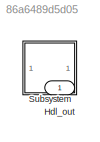
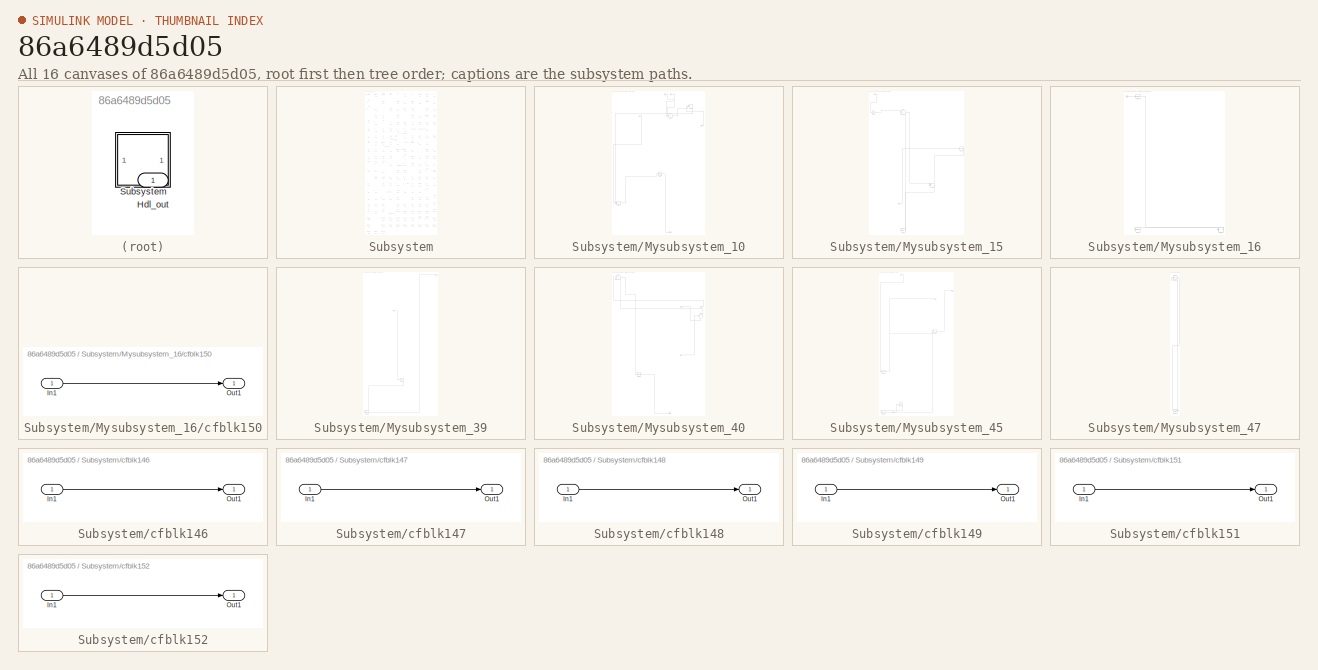
[diagram: thumbnail index - all 16 canvases of the model, root first then tree order]
MODEL slx_86a6489d5d05
KIND model
CONFIG AbsTol = auto
CONFIG EnableMultiTasking = off
CONFIG FixedStep = auto
CONFIG MaxStep = auto
CONFIG MinStep = auto
CONFIG RelTol = 1e-3
CONFIG SampleTimeConstraint = Unconstrained
CONFIG SolverName = VariableStepAuto
CONFIG StartTime = 0.0
CONFIG StopTime = 10.0
BLOCK [Outport] Hdl_out
  OutDataTypeStr = uint8
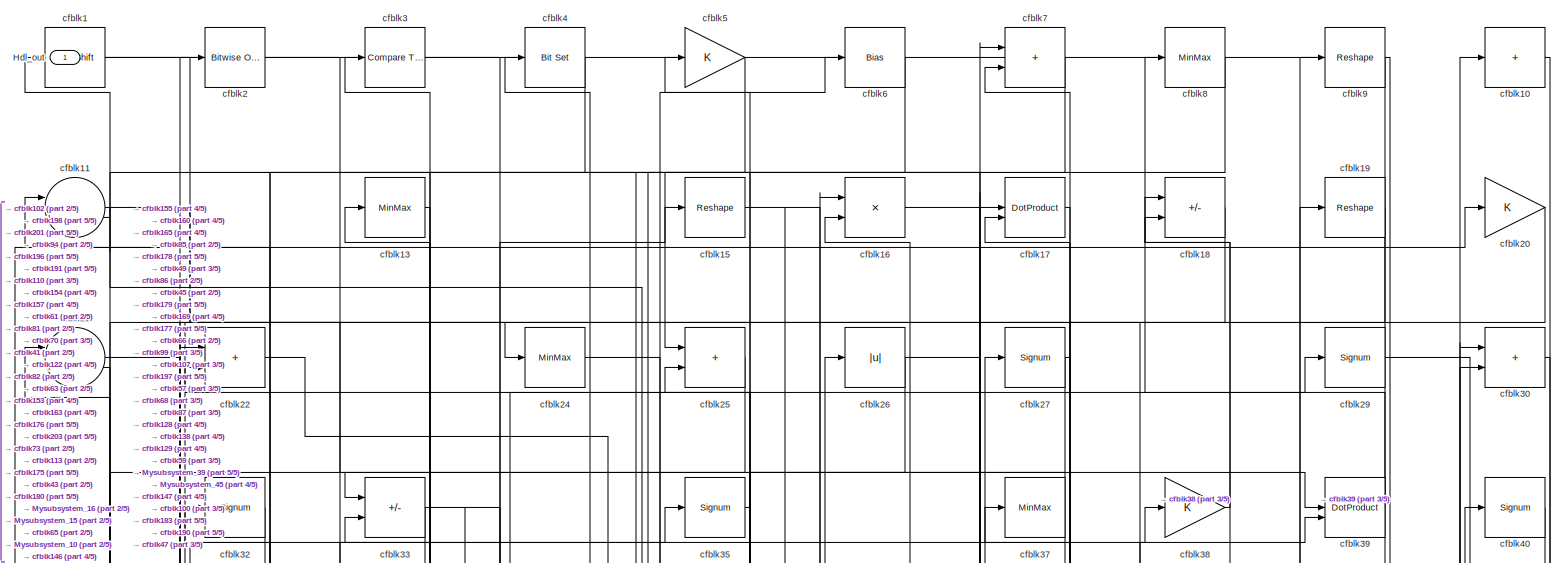
[diagram: Subsystem - part 1/5, full width, top band]
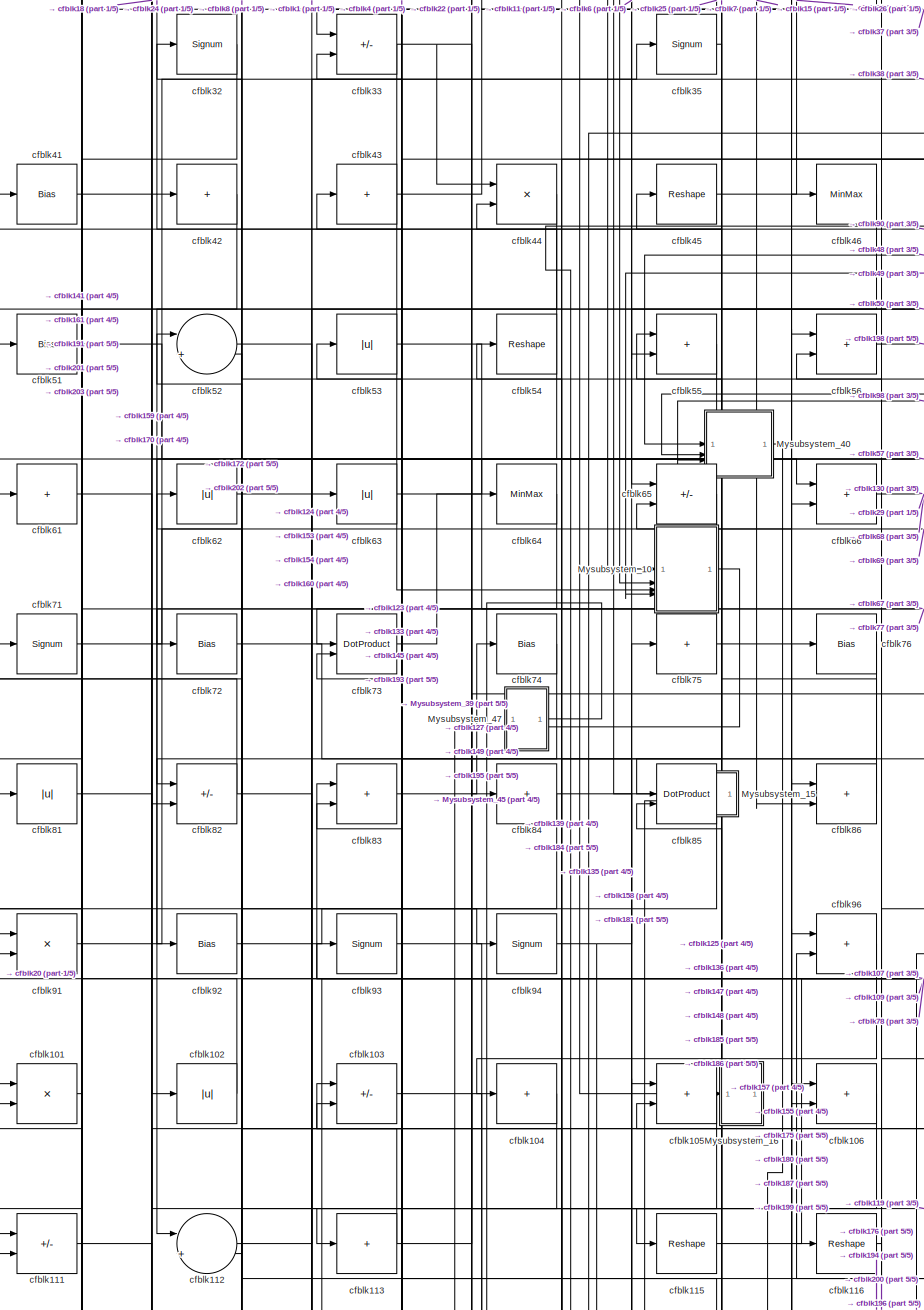
[diagram: Subsystem - part 2/5, middle left region]
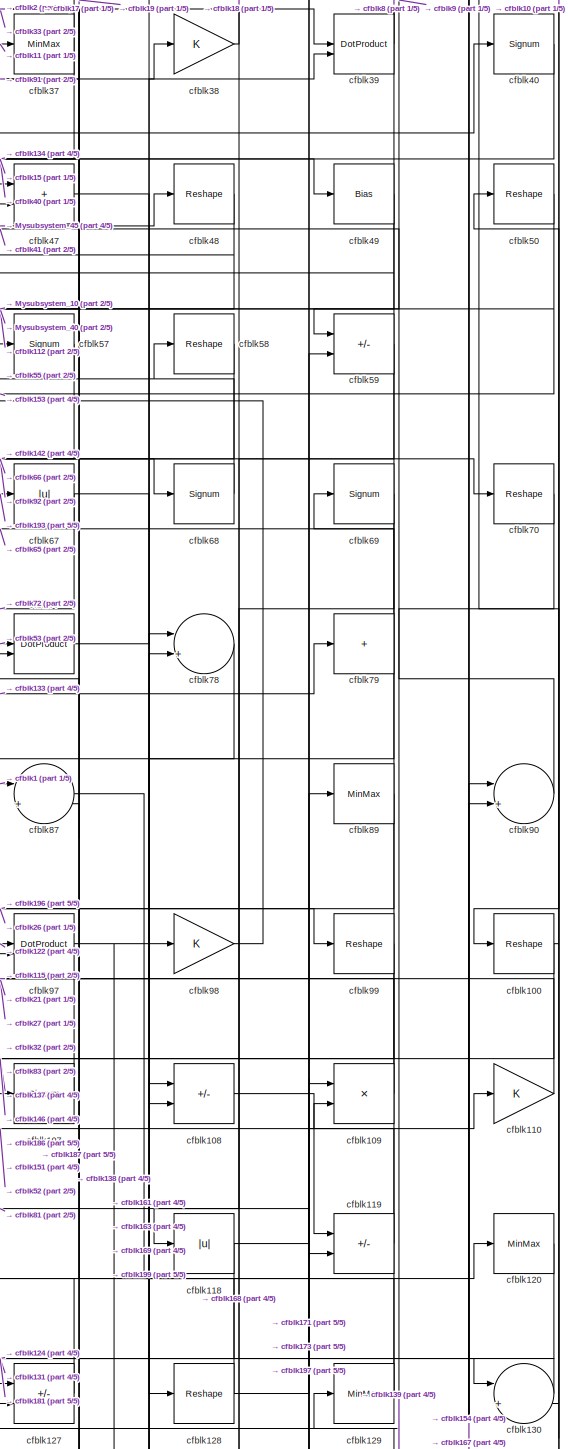
[diagram: Subsystem - part 3/5, middle right region]
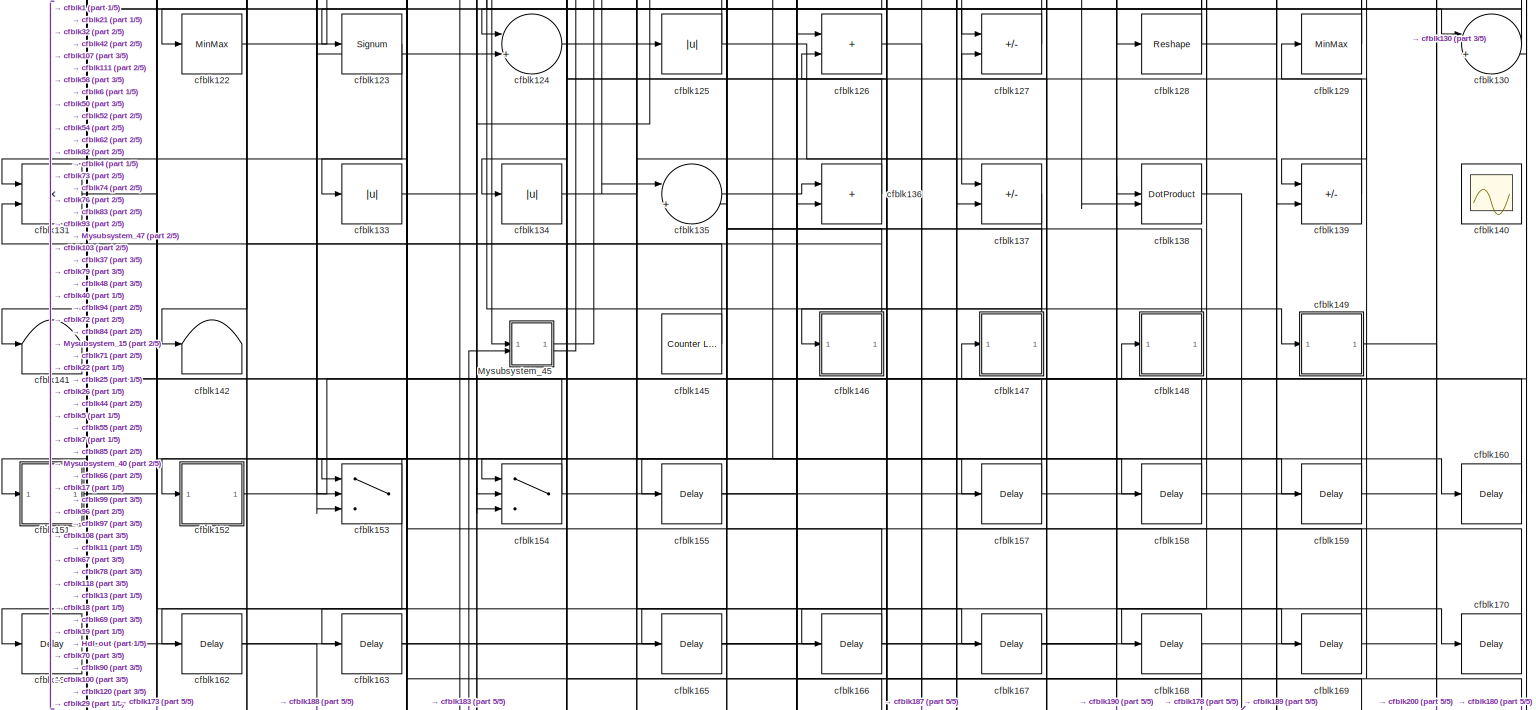
[diagram: Subsystem - part 4/5, full width, bottom band]
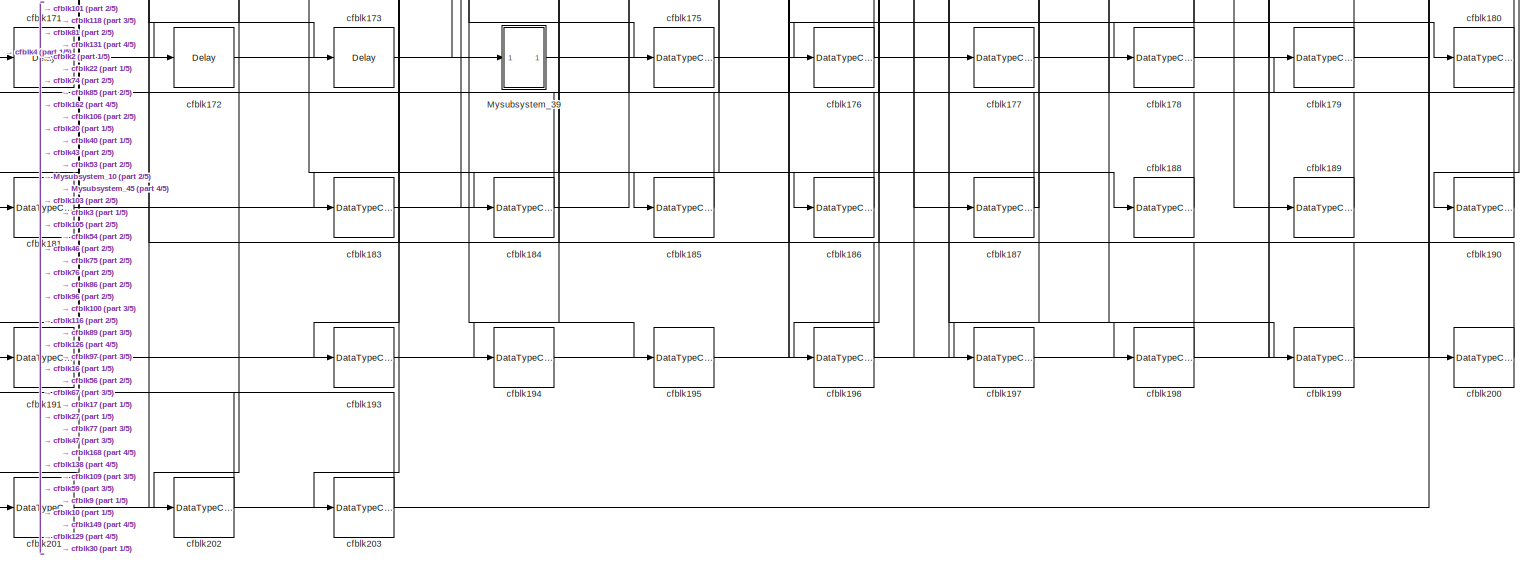
[diagram: Subsystem - part 5/5, full width, bottom band]
BLOCK [SubSystem] Subsystem
BLOCK [Outport] Subsystem/Hdl_out
  OutDataTypeStr = uint8
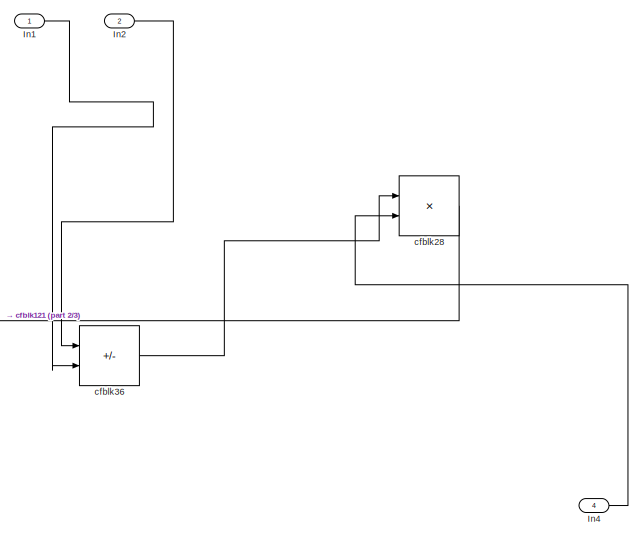
[diagram: Subsystem/Mysubsystem_10 - part 1/3, top right region]
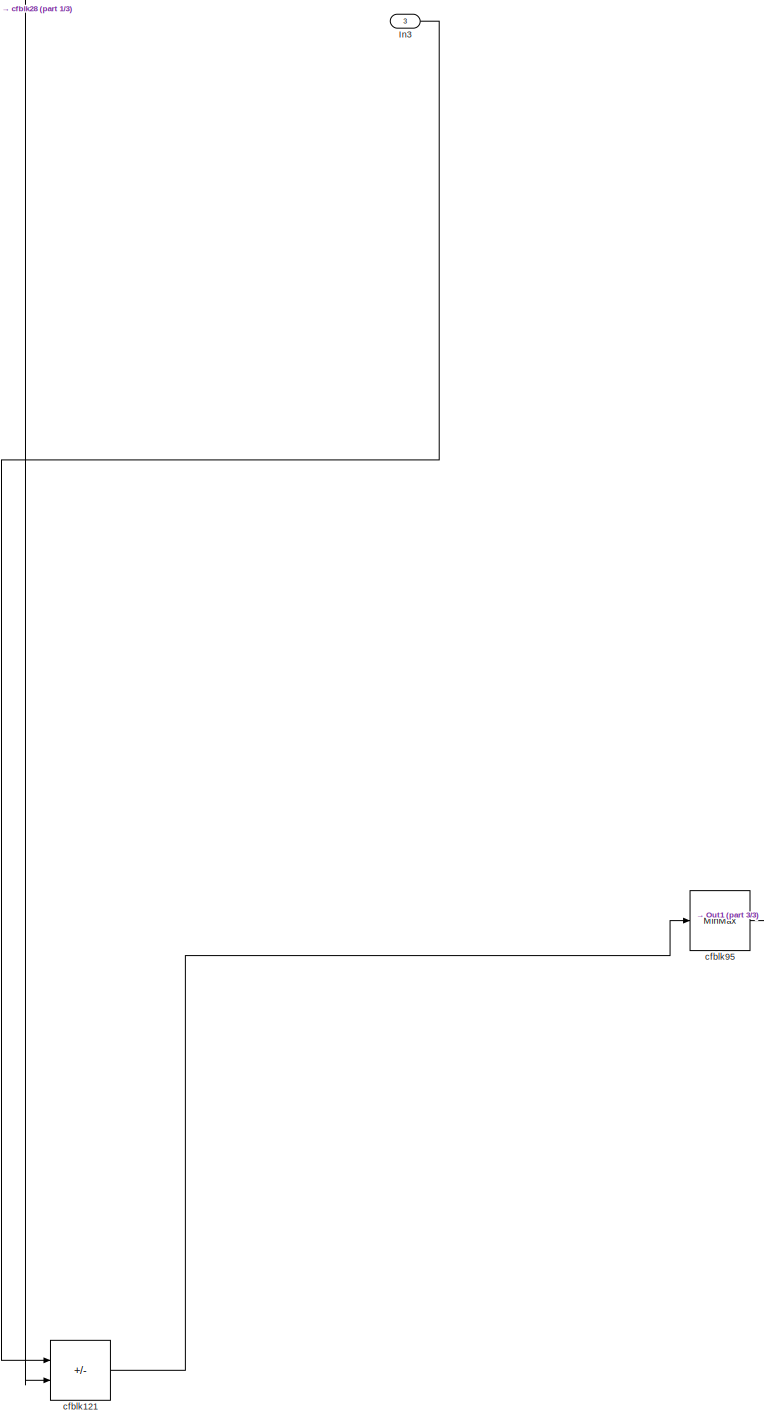
[diagram: Subsystem/Mysubsystem_10 - part 2/3, middle left region]
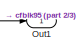
[diagram: Subsystem/Mysubsystem_10 - part 3/3, bottom center region]
BLOCK [SubSystem] Subsystem/Mysubsystem_10
  RTWFcnName = Mysubsystem_10
  RTWFcnNameOpts = User specified
  RTWFileNameOpts = Use function name
  RTWSystemCode = Reusable function
  TreatAsAtomicUnit = on
BLOCK [Inport] Subsystem/Mysubsystem_10/In1
BLOCK [Inport] Subsystem/Mysubsystem_10/In2
  Port = 2
BLOCK [Inport] Subsystem/Mysubsystem_10/In3
  Port = 3
BLOCK [Inport] Subsystem/Mysubsystem_10/In4
  Port = 4
BLOCK [Outport] Subsystem/Mysubsystem_10/Out1
BLOCK [Sum] Subsystem/Mysubsystem_10/cfblk121
  IconShape = rectangular
  Inputs = +-
BLOCK [Product] Subsystem/Mysubsystem_10/cfblk28
  Inputs = */
  RndMeth = Zero
  SaturateOnIntegerOverflow = on
BLOCK [Sum] Subsystem/Mysubsystem_10/cfblk36
  IconShape = rectangular
  Inputs = +-
BLOCK [MinMax] Subsystem/Mysubsystem_10/cfblk95
BLOCK [SubSystem] Subsystem/Mysubsystem_15
  RTWFcnName = Mysubsystem_15
  RTWFcnNameOpts = User specified
  RTWFileNameOpts = Use function name
  RTWSystemCode = Reusable function
  TreatAsAtomicUnit = on
BLOCK [Inport] Subsystem/Mysubsystem_15/In1
BLOCK [Inport] Subsystem/Mysubsystem_15/In2
  Port = 2
BLOCK [Sum] Subsystem/Mysubsystem_15/cfblk117
  IconShape = rectangular
  Inputs = +-
BLOCK [Delay] Subsystem/Mysubsystem_15/cfblk164
  InputPortMap = u0
  SampleTime = 1
BLOCK [Gain] Subsystem/Mysubsystem_15/cfblk31
BLOCK [Sum] Subsystem/Mysubsystem_15/cfblk34
  IconShape = rectangular
  Inputs = +-
BLOCK [Signum] Subsystem/Mysubsystem_15/cfblk80
BLOCK [SubSystem] Subsystem/Mysubsystem_16
  RTWFcnName = Mysubsystem_16
  RTWFcnNameOpts = User specified
  RTWFileNameOpts = Use function name
  RTWSystemCode = Reusable function
  TreatAsAtomicUnit = on
BLOCK [Inport] Subsystem/Mysubsystem_16/In1
BLOCK [ToWorkspace] Subsystem/Mysubsystem_16/cfblk143
  MaxDataPoints = inf
  SampleTime = -1
  SaveFormat = Timeseries
  VariableName = simout
BLOCK [SubSystem] Subsystem/Mysubsystem_16/cfblk150
  LibrarySourceBlock = hdlsllib/Ports &\nSubsystems/Subsystem
BLOCK [Inport] Subsystem/Mysubsystem_16/cfblk150/In1
BLOCK [Outport] Subsystem/Mysubsystem_16/cfblk150/Out1
BLOCK [MinMax] Subsystem/Mysubsystem_16/cfblk23
BLOCK [SubSystem] Subsystem/Mysubsystem_39
  RTWFcnName = Mysubsystem_39
  RTWFcnNameOpts = User specified
  RTWFileNameOpts = Use function name
  RTWSystemCode = Reusable function
  TreatAsAtomicUnit = on
BLOCK [Inport] Subsystem/Mysubsystem_39/In1
BLOCK [Outport] Subsystem/Mysubsystem_39/Out1
BLOCK [Delay] Subsystem/Mysubsystem_39/cfblk156
  InputPortMap = u0
  SampleTime = 1
BLOCK [DataTypeConversion] Subsystem/Mysubsystem_39/cfblk192
  OutDataTypeStr = uint8
  RndMeth = Floor
  SaturateOnIntegerOverflow = off
BLOCK [SubSystem] Subsystem/Mysubsystem_40
  RTWFcnName = Mysubsystem_40
  RTWFcnNameOpts = User specified
  RTWFileNameOpts = Use function name
  RTWSystemCode = Reusable function
  TreatAsAtomicUnit = on
BLOCK [Inport] Subsystem/Mysubsystem_40/In1
BLOCK [Inport] Subsystem/Mysubsystem_40/In2
  Port = 2
BLOCK [Inport] Subsystem/Mysubsystem_40/In3
  Port = 3
BLOCK [Outport] Subsystem/Mysubsystem_40/Out1
BLOCK [Reshape] Subsystem/Mysubsystem_40/cfblk114
BLOCK [Product] Subsystem/Mysubsystem_40/cfblk12
  Inputs = */
  RndMeth = Zero
  SaturateOnIntegerOverflow = on
BLOCK [Sum] Subsystem/Mysubsystem_40/cfblk60
  Inputs = |++
BLOCK [SubSystem] Subsystem/Mysubsystem_45
  RTWFcnName = Mysubsystem_45
  RTWFcnNameOpts = User specified
  RTWFileNameOpts = Use function name
  RTWSystemCode = Reusable function
  TreatAsAtomicUnit = on
BLOCK [Inport] Subsystem/Mysubsystem_45/In1
BLOCK [Inport] Subsystem/Mysubsystem_45/In2
  Port = 2
BLOCK [Outport] Subsystem/Mysubsystem_45/Out1
BLOCK [Outport] Subsystem/Mysubsystem_45/Out2
  Port = 2
BLOCK [Reshape] Subsystem/Mysubsystem_45/cfblk132
BLOCK [Delay] Subsystem/Mysubsystem_45/cfblk174
  InputPortMap = u0
  SampleTime = 1
BLOCK [DataTypeConversion] Subsystem/Mysubsystem_45/cfblk182
  OutDataTypeStr = uint8
  RndMeth = Floor
  SaturateOnIntegerOverflow = off
BLOCK [Sum] Subsystem/Mysubsystem_45/cfblk88
  IconShape = rectangular
BLOCK [SubSystem] Subsystem/Mysubsystem_47
  RTWFcnName = Mysubsystem_47
  RTWFcnNameOpts = User specified
  RTWFileNameOpts = Use function name
  RTWSystemCode = Reusable function
  TreatAsAtomicUnit = on
BLOCK [Outport] Subsystem/Mysubsystem_47/Out1
BLOCK [Reshape] Subsystem/Mysubsystem_47/cfblk14
BLOCK [Ground] Subsystem/Mysubsystem_47/cfblk144
BLOCK [ArithShift] Subsystem/cfblk1
  BitShiftNumber = 8
  InputPortMap = u0
BLOCK [Sum] Subsystem/cfblk10
  IconShape = rectangular
  Inputs = +
  OutDataTypeStr = uint8
BLOCK [Reshape] Subsystem/cfblk100
BLOCK [Product] Subsystem/cfblk101
  Inputs = */
  OutDataTypeStr = uint8
  RndMeth = Zero
  SaturateOnIntegerOverflow = on
BLOCK [Abs] Subsystem/cfblk102
  OutDataTypeStr = uint8
  SaturateOnIntegerOverflow = off
BLOCK [Sum] Subsystem/cfblk103
  IconShape = rectangular
  Inputs = +-
  OutDataTypeStr = uint8
BLOCK [Sum] Subsystem/cfblk104
  IconShape = rectangular
  Inputs = +
  OutDataTypeStr = uint8
BLOCK [Sum] Subsystem/cfblk105
  IconShape = rectangular
  OutDataTypeStr = uint8
BLOCK [Sum] Subsystem/cfblk106
  IconShape = rectangular
  OutDataTypeStr = uint8
BLOCK [Signum] Subsystem/cfblk107
BLOCK [Sum] Subsystem/cfblk108
  IconShape = rectangular
  Inputs = +-
  OutDataTypeStr = uint8
BLOCK [Product] Subsystem/cfblk109
  Inputs = */
  OutDataTypeStr = uint8
  RndMeth = Zero
  SaturateOnIntegerOverflow = on
BLOCK [Sum] Subsystem/cfblk11
  Inputs = |++
  OutDataTypeStr = uint8
BLOCK [Gain] Subsystem/cfblk110
  OutDataTypeStr = uint8
BLOCK [Sum] Subsystem/cfblk111
  IconShape = rectangular
  Inputs = +-
  OutDataTypeStr = uint8
BLOCK [Sum] Subsystem/cfblk112
  Inputs = |++
  OutDataTypeStr = uint8
BLOCK [Sum] Subsystem/cfblk113
  IconShape = rectangular
  Inputs = +
  OutDataTypeStr = uint8
BLOCK [Reshape] Subsystem/cfblk115
BLOCK [Reshape] Subsystem/cfblk116
BLOCK [Abs] Subsystem/cfblk118
  OutDataTypeStr = uint8
  SaturateOnIntegerOverflow = off
BLOCK [Sum] Subsystem/cfblk119
  IconShape = rectangular
  Inputs = +-
  OutDataTypeStr = uint8
BLOCK [MinMax] Subsystem/cfblk120
  OutDataTypeStr = uint8
BLOCK [MinMax] Subsystem/cfblk122
  OutDataTypeStr = uint8
BLOCK [Signum] Subsystem/cfblk123
BLOCK [Sum] Subsystem/cfblk124
  Inputs = |++
  OutDataTypeStr = uint8
BLOCK [Abs] Subsystem/cfblk125
  OutDataTypeStr = uint8
  SaturateOnIntegerOverflow = off
BLOCK [Sum] Subsystem/cfblk126
  IconShape = rectangular
  OutDataTypeStr = uint8
BLOCK [Sum] Subsystem/cfblk127
  IconShape = rectangular
  Inputs = +-
  OutDataTypeStr = uint8
BLOCK [Reshape] Subsystem/cfblk128
BLOCK [MinMax] Subsystem/cfblk129
  OutDataTypeStr = uint8
BLOCK [MinMax] Subsystem/cfblk13
  OutDataTypeStr = uint8
BLOCK [Sum] Subsystem/cfblk130
  Inputs = |++
  OutDataTypeStr = uint8
BLOCK [Product] Subsystem/cfblk131
  Inputs = */
  OutDataTypeStr = uint8
  RndMeth = Zero
  SaturateOnIntegerOverflow = on
BLOCK [Abs] Subsystem/cfblk133
  OutDataTypeStr = uint8
  SaturateOnIntegerOverflow = off
BLOCK [Abs] Subsystem/cfblk134
  OutDataTypeStr = uint8
  SaturateOnIntegerOverflow = off
BLOCK [Sum] Subsystem/cfblk135
  Inputs = |++
  OutDataTypeStr = uint8
BLOCK [Sum] Subsystem/cfblk136
  IconShape = rectangular
  OutDataTypeStr = uint8
BLOCK [Sum] Subsystem/cfblk137
  IconShape = rectangular
  Inputs = +-
  OutDataTypeStr = uint8
BLOCK [DotProduct] Subsystem/cfblk138
  OutDataTypeStr = uint8
BLOCK [Sum] Subsystem/cfblk139
  IconShape = rectangular
  Inputs = +-
  OutDataTypeStr = uint8
BLOCK [Scope] Subsystem/cfblk140
  Floating = on
  NumInputPorts = 1
  ScopeSpecificationString = Simulink.scopes.TimeScopeBlockCfg('CurrentConfiguration', extmgr.ConfigurationSet(extmgr.Configuration('Core','General UI',true,'FigureColor',[0.156862745098039 0.156862745098039 0.156862745098039]),extmgr.Configuration('Core','Source UI',true),extmgr.Configuration('Sources','WiredSimulink',true,'DataLoggingSaveFormat','StructureWithTime','DataLoggingLimitDataPoints',true,'DataLoggingDecimation','...<+2674ch>
BLOCK [Terminator] Subsystem/cfblk141
BLOCK [Terminator] Subsystem/cfblk142
BLOCK [Reference] Subsystem/cfblk145  REF=hdlsllib/Sources/Counter
Limited
  SourceBlock = hdlsllib/Sources/Counter\nLimited
  SourceType = Counter Limited
BLOCK [SubSystem] Subsystem/cfblk146
  LibrarySourceBlock = hdlsllib/Ports &\nSubsystems/Subsystem
BLOCK [Inport] Subsystem/cfblk146/In1
BLOCK [Outport] Subsystem/cfblk146/Out1
BLOCK [SubSystem] Subsystem/cfblk147
  LibrarySourceBlock = hdlsllib/Ports &\nSubsystems/Subsystem
BLOCK [Inport] Subsystem/cfblk147/In1
BLOCK [Outport] Subsystem/cfblk147/Out1
BLOCK [SubSystem] Subsystem/cfblk148
  LibrarySourceBlock = hdlsllib/Ports &\nSubsystems/Subsystem
BLOCK [Inport] Subsystem/cfblk148/In1
BLOCK [Outport] Subsystem/cfblk148/Out1
BLOCK [SubSystem] Subsystem/cfblk149
  LibrarySourceBlock = hdlsllib/Ports &\nSubsystems/Subsystem
BLOCK [Inport] Subsystem/cfblk149/In1
BLOCK [Outport] Subsystem/cfblk149/Out1
BLOCK [Reshape] Subsystem/cfblk15
BLOCK [SubSystem] Subsystem/cfblk151
  LibrarySourceBlock = hdlsllib/Ports &\nSubsystems/Subsystem
BLOCK [Inport] Subsystem/cfblk151/In1
BLOCK [Outport] Subsystem/cfblk151/Out1
BLOCK [SubSystem] Subsystem/cfblk152
  LibrarySourceBlock = hdlsllib/Ports &\nSubsystems/Subsystem
BLOCK [Inport] Subsystem/cfblk152/In1
BLOCK [Outport] Subsystem/cfblk152/Out1
BLOCK [Switch] Subsystem/cfblk153
  InputSameDT = off
  OutDataTypeStr = uint8
  SaturateOnIntegerOverflow = off
BLOCK [Switch] Subsystem/cfblk154
  InputSameDT = off
  OutDataTypeStr = uint8
  SaturateOnIntegerOverflow = off
BLOCK [Delay] Subsystem/cfblk155
  InputPortMap = u0
  SampleTime = 1
BLOCK [Delay] Subsystem/cfblk157
  InputPortMap = u0
  SampleTime = 1
BLOCK [Delay] Subsystem/cfblk158
  InputPortMap = u0
  SampleTime = 1
BLOCK [Delay] Subsystem/cfblk159
  InputPortMap = u0
  SampleTime = 1
BLOCK [Product] Subsystem/cfblk16
  Inputs = */
  OutDataTypeStr = uint8
  RndMeth = Zero
  SaturateOnIntegerOverflow = on
BLOCK [Delay] Subsystem/cfblk160
  InputPortMap = u0
  SampleTime = 1
BLOCK [Delay] Subsystem/cfblk161
  InputPortMap = u0
  SampleTime = 1
BLOCK [Delay] Subsystem/cfblk162
  InputPortMap = u0
  SampleTime = 1
BLOCK [Delay] Subsystem/cfblk163
  InputPortMap = u0
  SampleTime = 1
BLOCK [Delay] Subsystem/cfblk165
  InputPortMap = u0
  SampleTime = 1
BLOCK [Delay] Subsystem/cfblk166
  InputPortMap = u0
  SampleTime = 1
BLOCK [Delay] Subsystem/cfblk167
  InputPortMap = u0
  SampleTime = 1
BLOCK [Delay] Subsystem/cfblk168
  InputPortMap = u0
  SampleTime = 1
BLOCK [Delay] Subsystem/cfblk169
  InputPortMap = u0
  SampleTime = 1
BLOCK [DotProduct] Subsystem/cfblk17
  OutDataTypeStr = uint8
BLOCK [Delay] Subsystem/cfblk170
  InputPortMap = u0
  SampleTime = 1
BLOCK [Delay] Subsystem/cfblk171
  InputPortMap = u0
  SampleTime = 1
BLOCK [Delay] Subsystem/cfblk172
  InputPortMap = u0
  SampleTime = 1
BLOCK [Delay] Subsystem/cfblk173
  InputPortMap = u0
  SampleTime = 1
BLOCK [DataTypeConversion] Subsystem/cfblk175
  OutDataTypeStr = uint8
  RndMeth = Floor
  SaturateOnIntegerOverflow = off
BLOCK [DataTypeConversion] Subsystem/cfblk176
  OutDataTypeStr = uint8
  RndMeth = Floor
  SaturateOnIntegerOverflow = off
BLOCK [DataTypeConversion] Subsystem/cfblk177
  OutDataTypeStr = uint8
  RndMeth = Floor
  SaturateOnIntegerOverflow = off
BLOCK [DataTypeConversion] Subsystem/cfblk178
  OutDataTypeStr = uint8
  RndMeth = Floor
  SaturateOnIntegerOverflow = off
BLOCK [DataTypeConversion] Subsystem/cfblk179
  OutDataTypeStr = uint8
  RndMeth = Floor
  SaturateOnIntegerOverflow = off
BLOCK [Sum] Subsystem/cfblk18
  IconShape = rectangular
  Inputs = +-
  OutDataTypeStr = uint8
BLOCK [DataTypeConversion] Subsystem/cfblk180
  OutDataTypeStr = uint8
  RndMeth = Floor
  SaturateOnIntegerOverflow = off
BLOCK [DataTypeConversion] Subsystem/cfblk181
  OutDataTypeStr = uint8
  RndMeth = Floor
  SaturateOnIntegerOverflow = off
BLOCK [DataTypeConversion] Subsystem/cfblk183
  OutDataTypeStr = uint8
  RndMeth = Floor
  SaturateOnIntegerOverflow = off
BLOCK [DataTypeConversion] Subsystem/cfblk184
  OutDataTypeStr = uint8
  RndMeth = Floor
  SaturateOnIntegerOverflow = off
BLOCK [DataTypeConversion] Subsystem/cfblk185
  OutDataTypeStr = uint8
  RndMeth = Floor
  SaturateOnIntegerOverflow = off
BLOCK [DataTypeConversion] Subsystem/cfblk186
  OutDataTypeStr = uint8
  RndMeth = Floor
  SaturateOnIntegerOverflow = off
BLOCK [DataTypeConversion] Subsystem/cfblk187
  OutDataTypeStr = uint8
  RndMeth = Floor
  SaturateOnIntegerOverflow = off
BLOCK [DataTypeConversion] Subsystem/cfblk188
  OutDataTypeStr = uint8
  RndMeth = Floor
  SaturateOnIntegerOverflow = off
BLOCK [DataTypeConversion] Subsystem/cfblk189
  OutDataTypeStr = uint8
  RndMeth = Floor
  SaturateOnIntegerOverflow = off
BLOCK [Reshape] Subsystem/cfblk19
BLOCK [DataTypeConversion] Subsystem/cfblk190
  OutDataTypeStr = uint8
  RndMeth = Floor
  SaturateOnIntegerOverflow = off
BLOCK [DataTypeConversion] Subsystem/cfblk191
  OutDataTypeStr = uint8
  RndMeth = Floor
  SaturateOnIntegerOverflow = off
BLOCK [DataTypeConversion] Subsystem/cfblk193
  OutDataTypeStr = uint8
  RndMeth = Floor
  SaturateOnIntegerOverflow = off
BLOCK [DataTypeConversion] Subsystem/cfblk194
  OutDataTypeStr = uint8
  RndMeth = Floor
  SaturateOnIntegerOverflow = off
BLOCK [DataTypeConversion] Subsystem/cfblk195
  OutDataTypeStr = uint8
  RndMeth = Floor
  SaturateOnIntegerOverflow = off
BLOCK [DataTypeConversion] Subsystem/cfblk196
  OutDataTypeStr = uint8
  RndMeth = Floor
  SaturateOnIntegerOverflow = off
BLOCK [DataTypeConversion] Subsystem/cfblk197
  OutDataTypeStr = uint8
  RndMeth = Floor
  SaturateOnIntegerOverflow = off
BLOCK [DataTypeConversion] Subsystem/cfblk198
  OutDataTypeStr = uint8
  RndMeth = Floor
  SaturateOnIntegerOverflow = off
BLOCK [DataTypeConversion] Subsystem/cfblk199
  OutDataTypeStr = uint8
  RndMeth = Floor
  SaturateOnIntegerOverflow = off
BLOCK [Reference] Subsystem/cfblk2  REF=simulink/Logic and Bit
Operations/Bitwise
Operator
  LibrarySourceBlock = hdlsllib/Logic and Bit\nOperations/Bitwise\nOperator
  SourceBlock = simulink/Logic and Bit\nOperations/Bitwise\nOperator
  SourceType = Bitwise Operator
BLOCK [Gain] Subsystem/cfblk20
  OutDataTypeStr = uint8
BLOCK [DataTypeConversion] Subsystem/cfblk200
  OutDataTypeStr = uint8
  RndMeth = Floor
  SaturateOnIntegerOverflow = off
BLOCK [DataTypeConversion] Subsystem/cfblk201
  OutDataTypeStr = uint8
  RndMeth = Floor
  SaturateOnIntegerOverflow = off
BLOCK [DataTypeConversion] Subsystem/cfblk202
  OutDataTypeStr = uint8
  RndMeth = Floor
  SaturateOnIntegerOverflow = off
BLOCK [DataTypeConversion] Subsystem/cfblk203
  OutDataTypeStr = uint8
  RndMeth = Floor
  SaturateOnIntegerOverflow = off
BLOCK [Sum] Subsystem/cfblk21
  Inputs = |++
  OutDataTypeStr = uint8
BLOCK [Sum] Subsystem/cfblk22
  IconShape = rectangular
  OutDataTypeStr = uint8
BLOCK [MinMax] Subsystem/cfblk24
  OutDataTypeStr = uint8
BLOCK [Sum] Subsystem/cfblk25
  IconShape = rectangular
  OutDataTypeStr = uint8
BLOCK [Abs] Subsystem/cfblk26
  OutDataTypeStr = uint8
  SaturateOnIntegerOverflow = off
BLOCK [Signum] Subsystem/cfblk27
BLOCK [Signum] Subsystem/cfblk29
BLOCK [Reference] Subsystem/cfblk3  REF=hdlsllib/Logic and Bit
Operations/Compare
To Zero
  SourceBlock = hdlsllib/Logic and Bit\nOperations/Compare\nTo Zero
  SourceType = Compare To Zero
BLOCK [Sum] Subsystem/cfblk30
  IconShape = rectangular
  OutDataTypeStr = uint8
BLOCK [Signum] Subsystem/cfblk32
BLOCK [Sum] Subsystem/cfblk33
  IconShape = rectangular
  Inputs = +-
  OutDataTypeStr = uint8
BLOCK [Signum] Subsystem/cfblk35
BLOCK [MinMax] Subsystem/cfblk37
  OutDataTypeStr = uint8
BLOCK [Gain] Subsystem/cfblk38
  OutDataTypeStr = uint8
BLOCK [DotProduct] Subsystem/cfblk39
  OutDataTypeStr = uint8
BLOCK [Reference] Subsystem/cfblk4  REF=simulink/Logic and Bit
Operations/Bit Set
  LibrarySourceBlock = hdlsllib/Logic and Bit\nOperations/Bit Set
  SourceBlock = simulink/Logic and Bit\nOperations/Bit Set
  SourceType = Bit Set
BLOCK [Signum] Subsystem/cfblk40
BLOCK [Bias] Subsystem/cfblk41
  Bias = 0.0
  SaturateOnIntegerOverflow = off
BLOCK [Sum] Subsystem/cfblk42
  IconShape = rectangular
  Inputs = +
  OutDataTypeStr = uint8
BLOCK [Sum] Subsystem/cfblk43
  IconShape = rectangular
  Inputs = +
  OutDataTypeStr = uint8
BLOCK [Product] Subsystem/cfblk44
  Inputs = */
  OutDataTypeStr = uint8
  RndMeth = Zero
  SaturateOnIntegerOverflow = on
BLOCK [Reshape] Subsystem/cfblk45
BLOCK [MinMax] Subsystem/cfblk46
  OutDataTypeStr = uint8
BLOCK [Sum] Subsystem/cfblk47
  IconShape = rectangular
  OutDataTypeStr = uint8
BLOCK [Reshape] Subsystem/cfblk48
BLOCK [Bias] Subsystem/cfblk49
  Bias = 0.0
  SaturateOnIntegerOverflow = off
BLOCK [Gain] Subsystem/cfblk5
  OutDataTypeStr = uint8
BLOCK [Reshape] Subsystem/cfblk50
BLOCK [Bias] Subsystem/cfblk51
  Bias = 0.0
  SaturateOnIntegerOverflow = off
BLOCK [Sum] Subsystem/cfblk52
  Inputs = |++
  OutDataTypeStr = uint8
BLOCK [Abs] Subsystem/cfblk53
  OutDataTypeStr = uint8
  SaturateOnIntegerOverflow = off
BLOCK [Reshape] Subsystem/cfblk54
BLOCK [Sum] Subsystem/cfblk55
  IconShape = rectangular
  OutDataTypeStr = uint8
BLOCK [Sum] Subsystem/cfblk56
  IconShape = rectangular
  OutDataTypeStr = uint8
BLOCK [Signum] Subsystem/cfblk57
BLOCK [Reshape] Subsystem/cfblk58
BLOCK [Sum] Subsystem/cfblk59
  IconShape = rectangular
  Inputs = +-
  OutDataTypeStr = uint8
BLOCK [Bias] Subsystem/cfblk6
  Bias = 0.0
  SaturateOnIntegerOverflow = off
BLOCK [Sum] Subsystem/cfblk61
  IconShape = rectangular
  Inputs = +
  OutDataTypeStr = uint8
BLOCK [Abs] Subsystem/cfblk62
  OutDataTypeStr = uint8
  SaturateOnIntegerOverflow = off
BLOCK [Abs] Subsystem/cfblk63
  OutDataTypeStr = uint8
  SaturateOnIntegerOverflow = off
BLOCK [MinMax] Subsystem/cfblk64
  OutDataTypeStr = uint8
BLOCK [Sum] Subsystem/cfblk65
  IconShape = rectangular
  Inputs = +-
  OutDataTypeStr = uint8
BLOCK [Sum] Subsystem/cfblk66
  IconShape = rectangular
  OutDataTypeStr = uint8
BLOCK [Abs] Subsystem/cfblk67
  OutDataTypeStr = uint8
  SaturateOnIntegerOverflow = off
BLOCK [Signum] Subsystem/cfblk68
BLOCK [Signum] Subsystem/cfblk69
BLOCK [Sum] Subsystem/cfblk7
  IconShape = rectangular
  OutDataTypeStr = uint8
BLOCK [Reshape] Subsystem/cfblk70
BLOCK [Signum] Subsystem/cfblk71
BLOCK [Bias] Subsystem/cfblk72
  Bias = 0.0
  SaturateOnIntegerOverflow = off
BLOCK [DotProduct] Subsystem/cfblk73
  OutDataTypeStr = uint8
BLOCK [Bias] Subsystem/cfblk74
  Bias = 0.0
  SaturateOnIntegerOverflow = off
BLOCK [Sum] Subsystem/cfblk75
  IconShape = rectangular
  Inputs = +
  OutDataTypeStr = uint8
BLOCK [Bias] Subsystem/cfblk76
  Bias = 0.0
  SaturateOnIntegerOverflow = off
BLOCK [DotProduct] Subsystem/cfblk77
  OutDataTypeStr = uint8
BLOCK [Sum] Subsystem/cfblk78
  Inputs = |++
  OutDataTypeStr = uint8
BLOCK [Sum] Subsystem/cfblk79
  IconShape = rectangular
  Inputs = +
  OutDataTypeStr = uint8
BLOCK [MinMax] Subsystem/cfblk8
  OutDataTypeStr = uint8
BLOCK [Abs] Subsystem/cfblk81
  OutDataTypeStr = uint8
  SaturateOnIntegerOverflow = off
BLOCK [Sum] Subsystem/cfblk82
  IconShape = rectangular
  Inputs = +-
  OutDataTypeStr = uint8
BLOCK [Sum] Subsystem/cfblk83
  IconShape = rectangular
  OutDataTypeStr = uint8
BLOCK [Sum] Subsystem/cfblk84
  IconShape = rectangular
  Inputs = +
  OutDataTypeStr = uint8
BLOCK [DotProduct] Subsystem/cfblk85
  OutDataTypeStr = uint8
BLOCK [Sum] Subsystem/cfblk86
  IconShape = rectangular
  OutDataTypeStr = uint8
BLOCK [Sum] Subsystem/cfblk87
  Inputs = |++
  OutDataTypeStr = uint8
BLOCK [MinMax] Subsystem/cfblk89
  OutDataTypeStr = uint8
BLOCK [Reshape] Subsystem/cfblk9
BLOCK [Sum] Subsystem/cfblk90
  Inputs = |++
  OutDataTypeStr = uint8
BLOCK [Product] Subsystem/cfblk91
  Inputs = */
  OutDataTypeStr = uint8
  RndMeth = Zero
  SaturateOnIntegerOverflow = on
BLOCK [Bias] Subsystem/cfblk92
  Bias = 0.0
  SaturateOnIntegerOverflow = off
BLOCK [Signum] Subsystem/cfblk93
BLOCK [Signum] Subsystem/cfblk94
BLOCK [Sum] Subsystem/cfblk96
  IconShape = rectangular
  OutDataTypeStr = uint8
BLOCK [DotProduct] Subsystem/cfblk97
  OutDataTypeStr = uint8
BLOCK [Gain] Subsystem/cfblk98
  OutDataTypeStr = uint8
BLOCK [Reshape] Subsystem/cfblk99
LINE Subsystem/Mysubsystem_10/In1:1 -> Subsystem/Mysubsystem_10/cfblk36:2
LINE Subsystem/Mysubsystem_10/In2:1 -> Subsystem/Mysubsystem_10/cfblk36:1
LINE Subsystem/Mysubsystem_10/In3:1 -> Subsystem/Mysubsystem_10/cfblk121:1
LINE Subsystem/Mysubsystem_10/In4:1 -> Subsystem/Mysubsystem_10/cfblk28:2
LINE Subsystem/Mysubsystem_10/cfblk121:1 -> Subsystem/Mysubsystem_10/cfblk95:1
LINE Subsystem/Mysubsystem_10/cfblk28:1 -> Subsystem/Mysubsystem_10/cfblk121:2
LINE Subsystem/Mysubsystem_10/cfblk36:1 -> Subsystem/Mysubsystem_10/cfblk28:1
LINE Subsystem/Mysubsystem_10/cfblk95:1 -> Subsystem/Mysubsystem_10/Out1:1
LINE Subsystem/Mysubsystem_10:1 -> Subsystem/Mysubsystem_39:1
LINE Subsystem/Mysubsystem_15/In1:1 -> Subsystem/Mysubsystem_15/cfblk31:1
LINE Subsystem/Mysubsystem_15/In2:1 -> Subsystem/Mysubsystem_15/cfblk80:1
LINE Subsystem/Mysubsystem_15/cfblk117:1 -> Subsystem/Mysubsystem_15/cfblk164:1
LINE Subsystem/Mysubsystem_15/cfblk164:1 -> Subsystem/Mysubsystem_15/cfblk34:2
LINE Subsystem/Mysubsystem_15/cfblk31:1 -> Subsystem/Mysubsystem_15/cfblk34:1
LINE Subsystem/Mysubsystem_15/cfblk34:1 -> Subsystem/Mysubsystem_15/cfblk117:2
LINE Subsystem/Mysubsystem_15/cfblk80:1 -> Subsystem/Mysubsystem_15/cfblk117:1
LINE Subsystem/Mysubsystem_16/In1:1 -> Subsystem/Mysubsystem_16/cfblk23:1
LINE Subsystem/Mysubsystem_16/cfblk150/In1:1 -> Subsystem/Mysubsystem_16/cfblk150/Out1:1
LINE Subsystem/Mysubsystem_16/cfblk150:1 -> Subsystem/Mysubsystem_16/cfblk143:1
LINE Subsystem/Mysubsystem_16/cfblk23:1 -> Subsystem/Mysubsystem_16/cfblk150:1
LINE Subsystem/Mysubsystem_39/In1:1 -> Subsystem/Mysubsystem_39/cfblk156:1
LINE Subsystem/Mysubsystem_39/cfblk156:1 -> Subsystem/Mysubsystem_39/cfblk192:1
LINE Subsystem/Mysubsystem_39/cfblk192:1 -> Subsystem/Mysubsystem_39/Out1:1
LINE Subsystem/Mysubsystem_39:1 -> Subsystem/cfblk30:2
LINE Subsystem/Mysubsystem_40/In1:1 -> Subsystem/Mysubsystem_40/cfblk60:2
LINE Subsystem/Mysubsystem_40/In2:1 -> Subsystem/Mysubsystem_40/cfblk12:1
LINE Subsystem/Mysubsystem_40/In3:1 -> Subsystem/Mysubsystem_40/cfblk60:1
LINE Subsystem/Mysubsystem_40/cfblk114:1 -> Subsystem/Mysubsystem_40/Out1:1
LINE Subsystem/Mysubsystem_40/cfblk12:1 -> Subsystem/Mysubsystem_40/cfblk114:1
LINE Subsystem/Mysubsystem_40/cfblk60:1 -> Subsystem/Mysubsystem_40/cfblk12:2
LINE Subsystem/Mysubsystem_40:1 -> Subsystem/cfblk157:1
LINE Subsystem/Mysubsystem_45/In1:1 -> Subsystem/Mysubsystem_45/cfblk132:1
LINE Subsystem/Mysubsystem_45/In2:1 -> Subsystem/Mysubsystem_45/cfblk174:1
NET Subsystem/Mysubsystem_45/cfblk132:1 -> Subsystem/Mysubsystem_45/Out2:1, Subsystem/Mysubsystem_45/cfblk88:2
LINE Subsystem/Mysubsystem_45/cfblk174:1 -> Subsystem/Mysubsystem_45/cfblk182:1
LINE Subsystem/Mysubsystem_45/cfblk182:1 -> Subsystem/Mysubsystem_45/cfblk88:1
LINE Subsystem/Mysubsystem_45/cfblk88:1 -> Subsystem/Mysubsystem_45/Out1:1
LINE Subsystem/Mysubsystem_45:1 -> Subsystem/cfblk40:1
LINE Subsystem/Mysubsystem_45:2 -> Subsystem/cfblk48:1
LINE Subsystem/Mysubsystem_47/cfblk144:1 -> Subsystem/Mysubsystem_47/cfblk14:1
LINE Subsystem/Mysubsystem_47/cfblk14:1 -> Subsystem/Mysubsystem_47/Out1:1
LINE Subsystem/Mysubsystem_47:1 -> Subsystem/Mysubsystem_45:1
NET Subsystem/cfblk100:1 -> Subsystem/cfblk130:2, Subsystem/cfblk146:1, Subsystem/cfblk186:1, Subsystem/cfblk50:1
LINE Subsystem/cfblk101:1 -> Subsystem/cfblk201:1
LINE Subsystem/cfblk102:1 -> Subsystem/cfblk20:1
NET Subsystem/cfblk103:1 -> Subsystem/cfblk127:1, Subsystem/cfblk195:1
LINE Subsystem/cfblk104:1 -> Subsystem/cfblk112:2
LINE Subsystem/cfblk105:1 -> Subsystem/cfblk184:1
LINE Subsystem/cfblk106:1 -> Subsystem/cfblk193:1
NET Subsystem/cfblk107:1 -> Subsystem/cfblk27:1, Subsystem/cfblk32:1
LINE Subsystem/cfblk108:1 -> Subsystem/cfblk119:1
LINE Subsystem/cfblk109:1 -> Subsystem/cfblk83:1
LINE Subsystem/cfblk10:1 -> Subsystem/cfblk100:1
LINE Subsystem/cfblk110:1 -> Subsystem/cfblk21:1
LINE Subsystem/cfblk111:1 -> Subsystem/cfblk159:1
LINE Subsystem/cfblk112:1 -> Subsystem/cfblk35:1
NET Subsystem/cfblk113:1 -> Subsystem/cfblk15:1, Subsystem/cfblk52:1
LINE Subsystem/cfblk115:1 -> Subsystem/cfblk78:2
NET Subsystem/cfblk116:1 -> Subsystem/cfblk176:1, Subsystem/cfblk194:1
NET Subsystem/cfblk118:1 -> Subsystem/cfblk110:1, Subsystem/cfblk154:3, Subsystem/cfblk181:1
NET Subsystem/cfblk119:1 -> Subsystem/cfblk109:2, Subsystem/cfblk52:2
NET Subsystem/cfblk11:1 -> Subsystem/Mysubsystem_15:1, Subsystem/cfblk128:1
LINE Subsystem/cfblk120:1 -> Subsystem/cfblk131:1
LINE Subsystem/cfblk122:1 -> Subsystem/cfblk97:1
LINE Subsystem/cfblk123:1 -> Subsystem/cfblk151:1
LINE Subsystem/cfblk124:1 -> Subsystem/cfblk167:1
NET Subsystem/cfblk125:1 -> Subsystem/cfblk139:2, Subsystem/cfblk71:1
LINE Subsystem/cfblk126:1 -> Subsystem/cfblk187:1
LINE Subsystem/cfblk127:1 -> Subsystem/cfblk96:2
NET Subsystem/cfblk128:1 -> Subsystem/cfblk13:1, Subsystem/cfblk19:1
NET Subsystem/cfblk129:1 -> Subsystem/Hdl_out:1, Subsystem/cfblk7:2
LINE Subsystem/cfblk130:1 -> Subsystem/cfblk124:1
LINE Subsystem/cfblk131:1 -> Subsystem/cfblk173:1
NET Subsystem/cfblk133:1 -> Subsystem/Mysubsystem_15:2, Subsystem/cfblk79:1
LINE Subsystem/cfblk134:1 -> Subsystem/cfblk137:2
LINE Subsystem/cfblk135:1 -> Subsystem/cfblk136:1
NET Subsystem/cfblk136:1 -> Subsystem/cfblk103:1, Subsystem/cfblk85:2
LINE Subsystem/cfblk137:1 -> Subsystem/cfblk166:1
NET Subsystem/cfblk138:1 -> Subsystem/cfblk189:1, Subsystem/cfblk18:1
LINE Subsystem/cfblk139:1 -> Subsystem/cfblk93:1
LINE Subsystem/cfblk13:1 -> Subsystem/cfblk163:1
NET Subsystem/cfblk145:1 -> Subsystem/cfblk62:1, Subsystem/cfblk73:2
LINE Subsystem/cfblk146/In1:1 -> Subsystem/cfblk146/Out1:1
NET Subsystem/cfblk146:1 -> Subsystem/cfblk131:2, Subsystem/cfblk22:2
LINE Subsystem/cfblk147/In1:1 -> Subsystem/cfblk147/Out1:1
NET Subsystem/cfblk147:1 -> Subsystem/cfblk44:2, Subsystem/cfblk5:1
LINE Subsystem/cfblk148/In1:1 -> Subsystem/cfblk148/Out1:1
LINE Subsystem/cfblk148:1 -> Subsystem/cfblk55:1
LINE Subsystem/cfblk149/In1:1 -> Subsystem/cfblk149/Out1:1
LINE Subsystem/cfblk149:1 -> Subsystem/cfblk200:1
LINE Subsystem/cfblk151/In1:1 -> Subsystem/cfblk151/Out1:1
LINE Subsystem/cfblk151:1 -> Subsystem/cfblk107:1
LINE Subsystem/cfblk152/In1:1 -> Subsystem/cfblk152/Out1:1
LINE Subsystem/cfblk152:1 -> Subsystem/cfblk148:1
NET Subsystem/cfblk153:1 -> Subsystem/cfblk152:1, Subsystem/cfblk162:1
NET Subsystem/cfblk154:1 -> Subsystem/cfblk21:2, Subsystem/cfblk90:2
LINE Subsystem/cfblk155:1 -> Subsystem/cfblk66:2
LINE Subsystem/cfblk157:1 -> Subsystem/cfblk1:1
LINE Subsystem/cfblk158:1 -> Subsystem/cfblk127:2
LINE Subsystem/cfblk159:1 -> Subsystem/cfblk103:2
NET Subsystem/cfblk15:1 -> Subsystem/cfblk49:1, Subsystem/cfblk86:2
LINE Subsystem/cfblk160:1 -> Subsystem/cfblk25:2
LINE Subsystem/cfblk161:1 -> Subsystem/cfblk108:1
LINE Subsystem/cfblk162:1 -> Subsystem/cfblk188:1
LINE Subsystem/cfblk163:1 -> Subsystem/cfblk78:1
LINE Subsystem/cfblk165:1 -> Subsystem/cfblk136:2
LINE Subsystem/cfblk166:1 -> Subsystem/cfblk135:2
LINE Subsystem/cfblk167:1 -> Subsystem/cfblk90:1
LINE Subsystem/cfblk168:1 -> Subsystem/cfblk178:1
LINE Subsystem/cfblk169:1 -> Subsystem/cfblk17:1
LINE Subsystem/cfblk16:1 -> Subsystem/cfblk177:1
LINE Subsystem/cfblk170:1 -> Subsystem/cfblk83:2
LINE Subsystem/cfblk171:1 -> Subsystem/cfblk59:2
LINE Subsystem/cfblk172:1 -> Subsystem/cfblk96:1
LINE Subsystem/cfblk173:1 -> Subsystem/cfblk109:1
LINE Subsystem/cfblk175:1 -> Subsystem/cfblk76:1
LINE Subsystem/cfblk176:1 -> Subsystem/cfblk3:1
LINE Subsystem/cfblk177:1 -> Subsystem/cfblk17:2
LINE Subsystem/cfblk178:1 -> Subsystem/cfblk16:1
LINE Subsystem/cfblk179:1 -> Subsystem/cfblk16:2
LINE Subsystem/cfblk17:1 -> Subsystem/cfblk57:1
NET Subsystem/cfblk180:1 -> Subsystem/cfblk129:1, Subsystem/cfblk171:1, Subsystem/cfblk4:1
LINE Subsystem/cfblk181:1 -> Subsystem/cfblk75:1
LINE Subsystem/cfblk183:1 -> Subsystem/Mysubsystem_45:2
LINE Subsystem/cfblk184:1 -> Subsystem/cfblk53:1
LINE Subsystem/cfblk185:1 -> Subsystem/cfblk105:1
LINE Subsystem/cfblk186:1 -> Subsystem/cfblk105:2
NET Subsystem/cfblk187:1 -> Subsystem/cfblk77:2, Subsystem/cfblk86:1
LINE Subsystem/cfblk188:1 -> Subsystem/cfblk126:1
LINE Subsystem/cfblk189:1 -> Subsystem/cfblk126:2
LINE Subsystem/cfblk18:1 -> Subsystem/cfblk82:2
NET Subsystem/cfblk190:1 -> Subsystem/cfblk138:1, Subsystem/cfblk179:1
LINE Subsystem/cfblk191:1 -> Subsystem/cfblk30:1
LINE Subsystem/cfblk193:1 -> Subsystem/cfblk67:1
LINE Subsystem/cfblk194:1 -> Subsystem/cfblk106:1
LINE Subsystem/cfblk195:1 -> Subsystem/cfblk106:2
NET Subsystem/cfblk196:1 -> Subsystem/cfblk43:1, Subsystem/cfblk97:2, Subsystem/cfblk9:1
LINE Subsystem/cfblk197:1 -> Subsystem/cfblk89:1
NET Subsystem/cfblk198:1 -> Subsystem/cfblk22:1, Subsystem/cfblk54:1
LINE Subsystem/cfblk199:1 -> Subsystem/cfblk56:1
LINE Subsystem/cfblk19:1 -> Subsystem/cfblk47:1
NET Subsystem/cfblk1:1 -> Subsystem/cfblk63:1, Subsystem/cfblk87:1
LINE Subsystem/cfblk200:1 -> Subsystem/cfblk56:2
NET Subsystem/cfblk201:1 -> Subsystem/cfblk10:1, Subsystem/cfblk2:1
LINE Subsystem/cfblk202:1 -> Subsystem/cfblk101:1
LINE Subsystem/cfblk203:1 -> Subsystem/cfblk101:2
NET Subsystem/cfblk20:1 -> Subsystem/cfblk203:1, Subsystem/cfblk81:1
LINE Subsystem/cfblk21:1 -> Subsystem/cfblk70:1
LINE Subsystem/cfblk22:1 -> Subsystem/Mysubsystem_16:1
LINE Subsystem/cfblk24:1 -> Subsystem/cfblk65:1
LINE Subsystem/cfblk25:1 -> Subsystem/cfblk61:1
NET Subsystem/cfblk26:1 -> Subsystem/cfblk165:1, Subsystem/cfblk99:1
NET Subsystem/cfblk27:1 -> Subsystem/cfblk197:1, Subsystem/cfblk85:1, Subsystem/cfblk87:2
LINE Subsystem/cfblk29:1 -> Subsystem/cfblk147:1
LINE Subsystem/cfblk2:1 -> Subsystem/cfblk39:1
LINE Subsystem/cfblk30:1 -> Subsystem/cfblk190:1
LINE Subsystem/cfblk32:1 -> Subsystem/cfblk141:1
NET Subsystem/cfblk33:1 -> Subsystem/Mysubsystem_10:3, Subsystem/cfblk116:1, Subsystem/cfblk44:1
LINE Subsystem/cfblk35:1 -> Subsystem/cfblk115:1
NET Subsystem/cfblk37:1 -> Subsystem/cfblk134:1, Subsystem/cfblk33:1
LINE Subsystem/cfblk38:1 -> Subsystem/cfblk18:2
LINE Subsystem/cfblk39:1 -> Subsystem/cfblk8:1
LINE Subsystem/cfblk3:1 -> Subsystem/cfblk175:1
NET Subsystem/cfblk40:1 -> Subsystem/cfblk183:1, Subsystem/cfblk47:2
LINE Subsystem/cfblk41:1 -> Subsystem/cfblk24:1
LINE Subsystem/cfblk42:1 -> Subsystem/cfblk161:1
LINE Subsystem/cfblk43:1 -> Subsystem/cfblk7:1
LINE Subsystem/cfblk44:1 -> Subsystem/cfblk91:2
LINE Subsystem/cfblk45:1 -> Subsystem/cfblk26:1
LINE Subsystem/cfblk46:1 -> Subsystem/cfblk185:1
LINE Subsystem/cfblk47:1 -> Subsystem/cfblk199:1
NET Subsystem/cfblk48:1 -> Subsystem/Mysubsystem_40:1, Subsystem/cfblk112:1
NET Subsystem/cfblk49:1 -> Subsystem/Mysubsystem_10:4, Subsystem/cfblk55:2
NET Subsystem/cfblk4:1 -> Subsystem/cfblk153:1, Subsystem/cfblk73:1
NET Subsystem/cfblk50:1 -> Subsystem/Mysubsystem_40:2, Subsystem/cfblk153:3
LINE Subsystem/cfblk51:1 -> Subsystem/cfblk84:1
LINE Subsystem/cfblk52:1 -> Subsystem/cfblk124:2
LINE Subsystem/cfblk53:1 -> Subsystem/cfblk77:1
NET Subsystem/cfblk54:1 -> Subsystem/cfblk153:2, Subsystem/cfblk42:1
LINE Subsystem/cfblk55:1 -> Subsystem/cfblk91:1
LINE Subsystem/cfblk56:1 -> Subsystem/cfblk198:1
LINE Subsystem/cfblk57:1 -> Subsystem/cfblk92:1
LINE Subsystem/cfblk58:1 -> Subsystem/cfblk142:1
LINE Subsystem/cfblk59:1 -> Subsystem/cfblk118:1
LINE Subsystem/cfblk5:1 -> Subsystem/cfblk25:1
LINE Subsystem/cfblk61:1 -> Subsystem/cfblk102:1
LINE Subsystem/cfblk62:1 -> Subsystem/cfblk154:2
LINE Subsystem/cfblk63:1 -> Subsystem/cfblk66:1
LINE Subsystem/cfblk64:1 -> Subsystem/cfblk111:1
LINE Subsystem/cfblk65:1 -> Subsystem/cfblk113:1
NET Subsystem/cfblk66:1 -> Subsystem/cfblk130:1, Subsystem/cfblk29:1, Subsystem/cfblk68:1
NET Subsystem/cfblk67:1 -> Subsystem/cfblk169:1, Subsystem/cfblk72:1
NET Subsystem/cfblk68:1 -> Subsystem/cfblk11:1, Subsystem/cfblk37:1, Subsystem/cfblk58:1
NET Subsystem/cfblk69:1 -> Subsystem/cfblk168:1, Subsystem/cfblk65:2
NET Subsystem/cfblk6:1 -> Subsystem/Mysubsystem_10:1, Subsystem/cfblk122:1
LINE Subsystem/cfblk70:1 -> Subsystem/cfblk139:1
NET Subsystem/cfblk71:1 -> Subsystem/cfblk170:1, Subsystem/cfblk46:1
LINE Subsystem/cfblk72:1 -> Subsystem/cfblk125:1
NET Subsystem/cfblk73:1 -> Subsystem/cfblk33:2, Subsystem/cfblk64:1
NET Subsystem/cfblk74:1 -> Subsystem/cfblk123:1, Subsystem/cfblk202:1
LINE Subsystem/cfblk75:1 -> Subsystem/cfblk180:1
LINE Subsystem/cfblk76:1 -> Subsystem/cfblk133:1
LINE Subsystem/cfblk77:1 -> Subsystem/cfblk39:2
LINE Subsystem/cfblk78:1 -> Subsystem/cfblk108:2
NET Subsystem/cfblk79:1 -> Subsystem/cfblk154:1, Subsystem/cfblk69:1
NET Subsystem/cfblk7:1 -> Subsystem/Mysubsystem_10:2, Subsystem/cfblk155:1
NET Subsystem/cfblk81:1 -> Subsystem/cfblk119:2, Subsystem/cfblk191:1
NET Subsystem/cfblk82:1 -> Subsystem/cfblk160:1, Subsystem/cfblk51:1
LINE Subsystem/cfblk83:1 -> Subsystem/cfblk74:1
NET Subsystem/cfblk84:1 -> Subsystem/cfblk111:2, Subsystem/cfblk158:1
LINE Subsystem/cfblk85:1 -> Subsystem/cfblk172:1
LINE Subsystem/cfblk86:1 -> Subsystem/cfblk45:1
LINE Subsystem/cfblk87:1 -> Subsystem/cfblk120:1
LINE Subsystem/cfblk89:1 -> Subsystem/cfblk196:1
NET Subsystem/cfblk8:1 -> Subsystem/cfblk11:2, Subsystem/cfblk82:1
LINE Subsystem/cfblk90:1 -> Subsystem/cfblk41:1
LINE Subsystem/cfblk91:1 -> Subsystem/cfblk38:1
LINE Subsystem/cfblk92:1 -> Subsystem/cfblk94:1
LINE Subsystem/cfblk93:1 -> Subsystem/cfblk149:1
NET Subsystem/cfblk94:1 -> Subsystem/cfblk135:1, Subsystem/cfblk6:1
LINE Subsystem/cfblk96:1 -> Subsystem/cfblk104:1
NET Subsystem/cfblk97:1 -> Subsystem/cfblk138:2, Subsystem/cfblk98:1
LINE Subsystem/cfblk98:1 -> Subsystem/Mysubsystem_40:3
LINE Subsystem/cfblk99:1 -> Subsystem/cfblk137:1
LINE Subsystem/cfblk9:1 -> Subsystem/cfblk59:1
note: NET lines group one-source signal fan-out (src -> all destinations, sorted); 1:1 wires keep LINE
